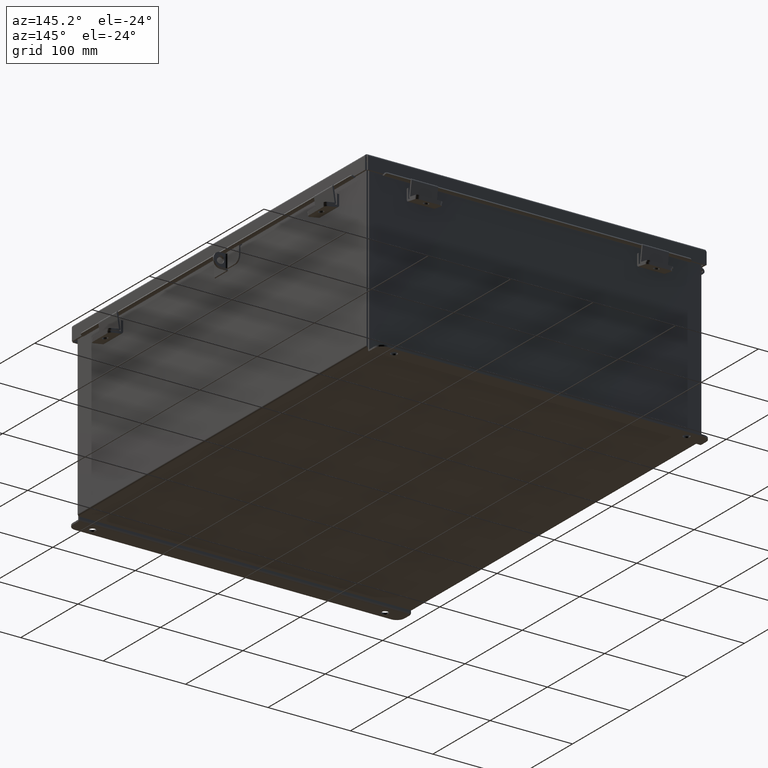
[diagram: clean part render]
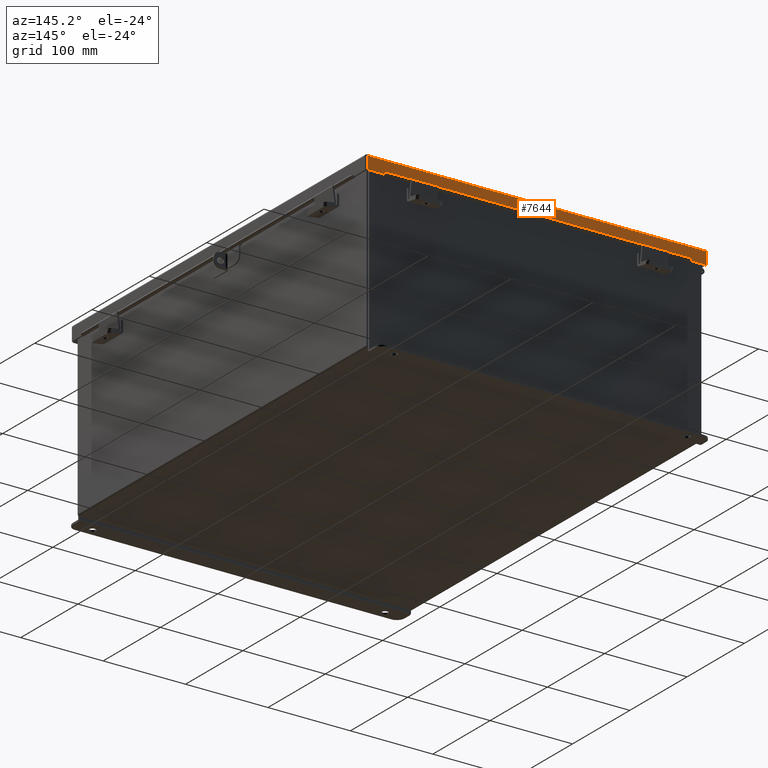
[diagram: same view with one face highlighted and labeled with its STEP entity id]
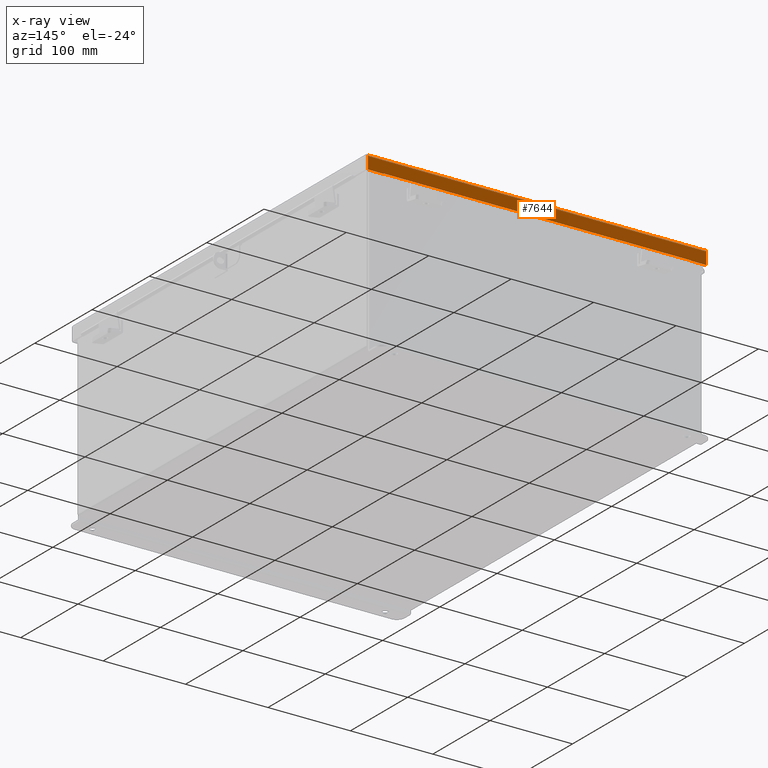
[diagram: x-ray of the same camera — body ghosted, the highlighted face saturated]
A machine part, auxiliary view. The second image highlights one B-rep face of the part: STEP entity #7644.
The next image is the same camera in x-ray: the body ghosted, the highlighted face saturated — about 0% of this face is hidden behind the body in this view.
In plain terms, the highlighted planar face has unit normal (-0, -1, -0).
Its self-contained STEP definition (entity closure, byte-faithful):
#103 = VECTOR ( 'NONE', #16820, 39.37007874015748100 ) ;
#221 = CARTESIAN_POINT ( 'NONE',  ( -8.074478932188167600, 10.15624999999998400, 0.6122999999999994000 ) ) ;
#1497 = EDGE_CURVE ( 'NONE', #5483, #10447, #18800, .T. ) ;
#1633 = EDGE_CURVE ( 'NONE', #21504, #10447, #21316, .T. ) ;
#1842 = VECTOR ( 'NONE', #20022, 39.37007874015748100 ) ;
#2472 = EDGE_CURVE ( 'NONE', #22364, #7032, #10413, .T. ) ;
#2976 = DIRECTION ( 'NONE',  ( 0.0000000000000000000, -3.569293475308532400E-015, -1.000000000000000000 ) ) ;
#3024 = PLANE ( 'NONE',  #4195 ) ;
#3413 = ORIENTED_EDGE ( 'NONE', *, *, #8156, .F. ) ;
#4121 = CARTESIAN_POINT ( 'NONE',  ( 0.0000000000000000000, 10.15624999999998200, -3.715313271383398100E-014 ) ) ;
#4195 = AXIS2_PLACEMENT_3D ( 'NONE', #4121, #17292, #2976 ) ;
#4368 = EDGE_CURVE ( 'NONE', #5633, #7032, #15511, .T. ) ;
#4553 = VERTEX_POINT ( 'NONE', #18857 ) ;
#5108 = CARTESIAN_POINT ( 'NONE',  ( -7.324478932188148100, 10.15624999999998400, 0.6122999999999994000 ) ) ;
#5214 = CARTESIAN_POINT ( 'NONE',  ( -7.324478932188140900, 10.15624999999998600, 0.5967115427318782100 ) ) ;
#5384 = DIRECTION ( 'NONE',  ( 1.000000000000000000, 3.215430816478818200E-030, 4.186740220174584600E-018 ) ) ;
#5395 = CARTESIAN_POINT ( 'NONE',  ( 7.324478932188149800, 10.15624999999998400, 0.6122999999999994000 ) ) ;
#5483 = VERTEX_POINT ( 'NONE', #19081 ) ;
#5633 = VERTEX_POINT ( 'NONE', #221 ) ;
#5765 = EDGE_CURVE ( 'NONE', #11685, #5483, #11150, .T. ) ;
#6520 = VECTOR ( 'NONE', #15745, 39.37007874015748100 ) ;
#7032 = VERTEX_POINT ( 'NONE', #5108 ) ;
#7499 = CARTESIAN_POINT ( 'NONE',  ( 7.324478932188149800, 10.15624999999998600, 0.6122999999999982900 ) ) ;
#7586 = LINE ( 'NONE', #18611, #15721 ) ;
#7644 = ADVANCED_FACE ( 'NONE', ( #13313 ), #3024, .F. ) ;
#7776 = EDGE_CURVE ( 'NONE', #4553, #22364, #10615, .T. ) ;
#8156 = EDGE_CURVE ( 'NONE', #21504, #4553, #17912, .T. ) ;
#8631 = CARTESIAN_POINT ( 'NONE',  ( 8.156250000000037300, 10.15624999999998200, 0.01300000000000010700 ) ) ;
#8759 = ORIENTED_EDGE ( 'NONE', *, *, #5765, .F. ) ;
#9022 = ORIENTED_EDGE ( 'NONE', *, *, #7776, .F. ) ;
#9353 = CARTESIAN_POINT ( 'NONE',  ( 7.324478932188148100, 10.15624999999998600, 0.5967115427318782100 ) ) ;
#9598 = VECTOR ( 'NONE', #20383, 39.37007874015748100 ) ;
#9696 = CARTESIAN_POINT ( 'NONE',  ( 8.074478932188171100, 10.15624999999998400, 0.6122999999999994000 ) ) ;
#9980 = DIRECTION ( 'NONE',  ( 0.0000000000000000000, 3.569293475308532400E-015, 1.000000000000000000 ) ) ;
#10212 = CARTESIAN_POINT ( 'NONE',  ( -3.201384367575308500E-018, 10.15624999999998400, 0.6122999999999994000 ) ) ;
#10413 = LINE ( 'NONE', #5214, #1842 ) ;
#10447 = VERTEX_POINT ( 'NONE', #9696 ) ;
#10611 = ORIENTED_EDGE ( 'NONE', *, *, #14235, .T. ) ;
#10615 = LINE ( 'NONE', #9353, #19859 ) ;
#11150 = LINE ( 'NONE', #8631, #6520 ) ;
#11685 = VERTEX_POINT ( 'NONE', #13271 ) ;
#12008 = VECTOR ( 'NONE', #15480, 39.37007874015748100 ) ;
#12305 = ORIENTED_EDGE ( 'NONE', *, *, #1633, .T. ) ;
#12716 = ORIENTED_EDGE ( 'NONE', *, *, #1497, .F. ) ;
#13271 = CARTESIAN_POINT ( 'NONE',  ( -8.074478932188167600, 10.15624999999998200, 0.01300000000000010700 ) ) ;
#13313 = FACE_OUTER_BOUND ( 'NONE', #16920, .T. ) ;
#14235 = EDGE_CURVE ( 'NONE', #11685, #5633, #7586, .T. ) ;
#15480 = DIRECTION ( 'NONE',  ( 1.000000000000000000, 3.215430816478818200E-030, 4.186740220174584600E-018 ) ) ;
#15511 = LINE ( 'NONE', #10212, #20170 ) ;
#15610 = DIRECTION ( 'NONE',  ( -1.000000000000000000, -3.191323508412551400E-030, -0.0000000000000000000 ) ) ;
#15721 = VECTOR ( 'NONE', #9980, 39.37007874015748100 ) ;
#15745 = DIRECTION ( 'NONE',  ( 1.000000000000000000, 3.191323508412550700E-030, -0.0000000000000000000 ) ) ;
#15963 = CARTESIAN_POINT ( 'NONE',  ( 8.074478932188171100, 10.15624999999998200, 0.0000000000000000000 ) ) ;
#16820 = DIRECTION ( 'NONE',  ( 0.0000000000000000000, -1.846427556282924300E-029, -1.000000000000000000 ) ) ;
#16920 = EDGE_LOOP ( 'NONE', ( #3413, #12305, #12716, #8759, #10611, #20709, #20310, #9022 ) ) ;
#17292 = DIRECTION ( 'NONE',  ( -3.372195227344556400E-030, -1.000000000000000000, 3.569293475308532400E-015 ) ) ;
#17912 = LINE ( 'NONE', #7499, #103 ) ;
#18611 = CARTESIAN_POINT ( 'NONE',  ( -8.074478932188167600, 10.15624999999998200, -3.715313271383398100E-014 ) ) ;
#18800 = LINE ( 'NONE', #15963, #9598 ) ;
#18857 = CARTESIAN_POINT ( 'NONE',  ( 7.324478932188149800, 10.15624999999998400, 0.5967115427318782100 ) ) ;
#19081 = CARTESIAN_POINT ( 'NONE',  ( 8.074478932188171100, 10.15624999999998200, 0.01300000000000010700 ) ) ;
#19473 = CARTESIAN_POINT ( 'NONE',  ( -3.201384367575308500E-018, 10.15624999999998400, 0.6122999999999994000 ) ) ;
#19820 = CARTESIAN_POINT ( 'NONE',  ( -7.324478932188140900, 10.15624999999998400, 0.5967115427318782100 ) ) ;
#19859 = VECTOR ( 'NONE', #15610, 39.37007874015748100 ) ;
#20022 = DIRECTION ( 'NONE',  ( -3.504962610060362700E-013, 1.873544649899896900E-029, 1.000000000000000000 ) ) ;
#20170 = VECTOR ( 'NONE', #5384, 39.37007874015748100 ) ;
#20310 = ORIENTED_EDGE ( 'NONE', *, *, #2472, .F. ) ;
#20383 = DIRECTION ( 'NONE',  ( -0.0000000000000000000, 3.569293475308532400E-015, 1.000000000000000000 ) ) ;
#20709 = ORIENTED_EDGE ( 'NONE', *, *, #4368, .T. ) ;
#21316 = LINE ( 'NONE', #19473, #12008 ) ;
#21504 = VERTEX_POINT ( 'NONE', #5395 ) ;
#22364 = VERTEX_POINT ( 'NONE', #19820 ) ;